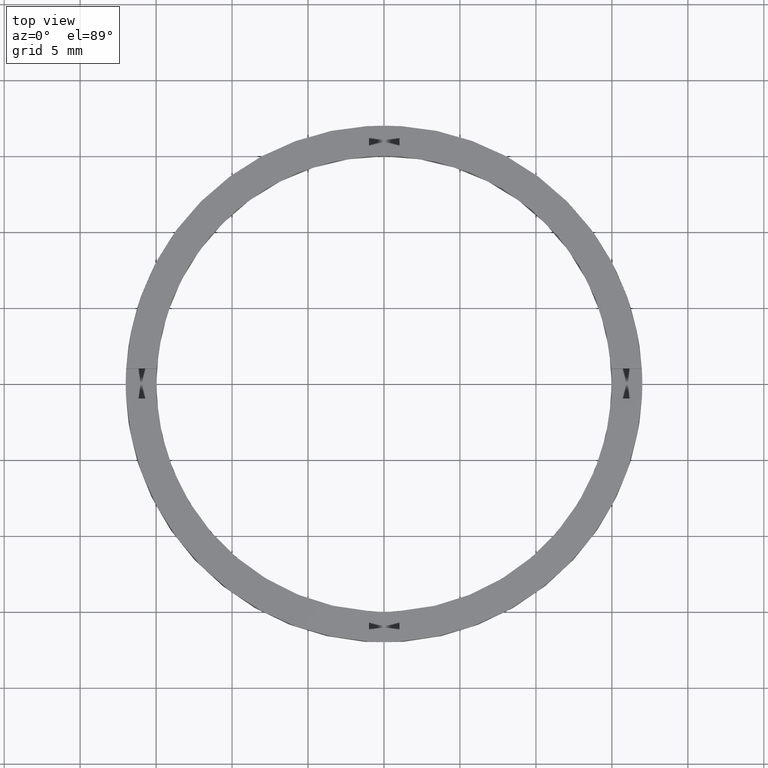
[diagram: clean part render]
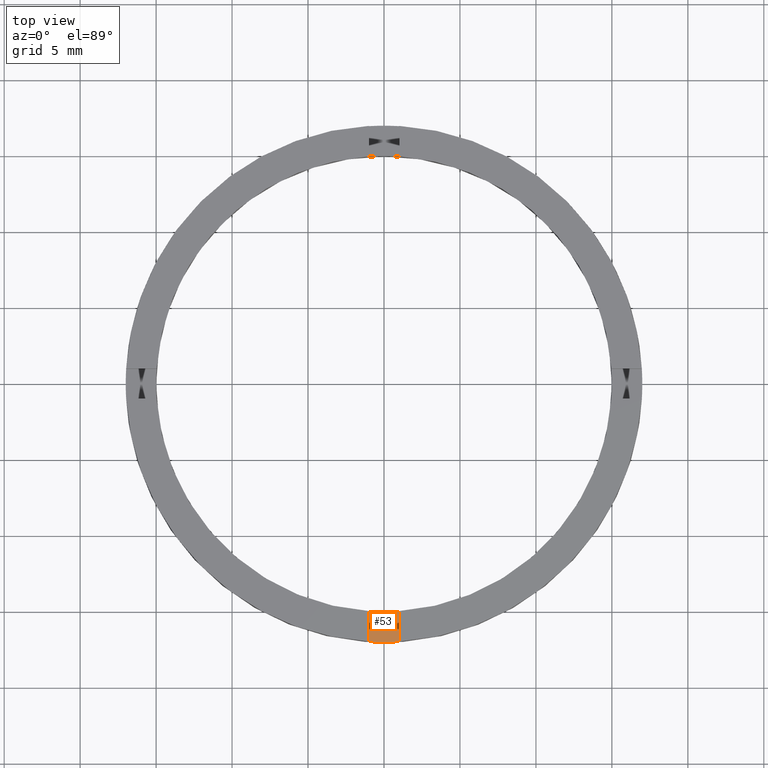
[diagram: same view with one face highlighted and labeled with its STEP entity id]
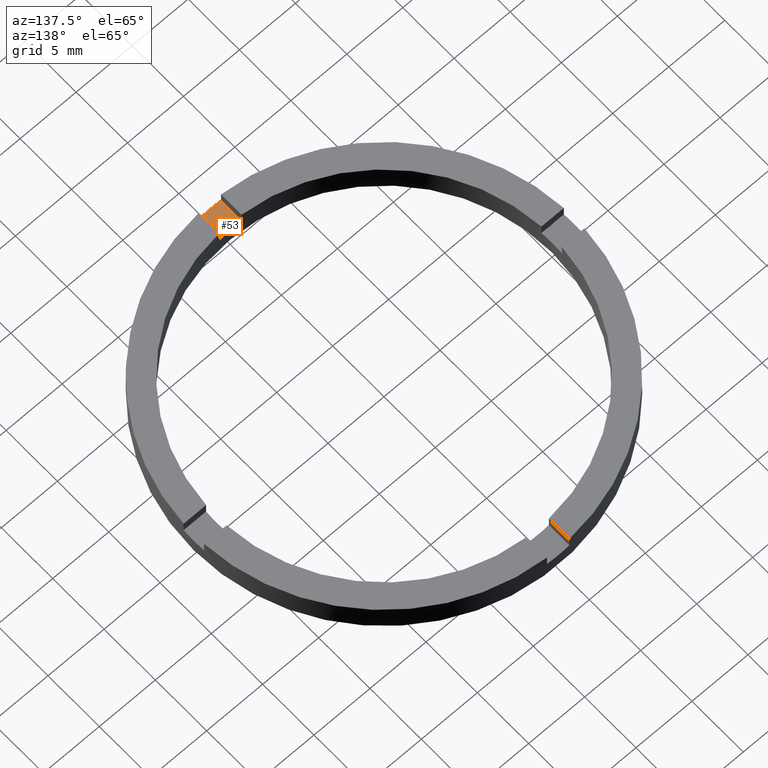
[diagram: same view with one face highlighted and labeled with its STEP entity id]
A machine part, top view. The second image highlights one B-rep face of the part: STEP entity #53.
A second angle (auxiliary view) of the same face is appended — the face is thin or edge-on in the first view.
In plain terms, the highlighted planar face has unit normal (-0, 0, 1).
Its self-contained STEP definition (entity closure, byte-faithful):
#15 = PLANE ( 'NONE',  #451 ) ;
#23 = DIRECTION ( 'NONE',  ( 1.301042606982605321E-16, -1.000000000000000000, 0.000000000000000000 ) ) ;
#53 = ADVANCED_FACE ( 'NONE', ( #59 ), #15, .T. ) ;
#59 = FACE_OUTER_BOUND ( 'NONE', #741, .T. ) ;
#67 = DIRECTION ( 'NONE',  ( 1.000000000000000000, 0.000000000000000000, 0.000000000000000000 ) ) ;
#102 = DIRECTION ( 'NONE',  ( -0.000000000000000000, 0.000000000000000000, 1.000000000000000000 ) ) ;
#126 = AXIS2_PLACEMENT_3D ( 'NONE', #191, #102, #250 ) ;
#132 = DIRECTION ( 'NONE',  ( -0.000000000000000000, 0.000000000000000000, 1.000000000000000000 ) ) ;
#133 = CARTESIAN_POINT ( 'NONE',  ( -1.000000000000163647, -7.000000000000181188, 1.500000000000000000 ) ) ;
#140 = LINE ( 'NONE', #200, #672 ) ;
#162 = VERTEX_POINT ( 'NONE', #585 ) ;
#191 = CARTESIAN_POINT ( 'NONE',  ( 0.000000000000000000, 0.000000000000000000, 1.500000000000000000 ) ) ;
#194 = EDGE_CURVE ( 'NONE', #725, #709, #270, .T. ) ;
#200 = CARTESIAN_POINT ( 'NONE',  ( 0.9999999999998363531, -7.000000000000181188, 1.500000000000000000 ) ) ;
#250 = DIRECTION ( 'NONE',  ( 1.000000000000000000, 0.000000000000000000, 0.000000000000000000 ) ) ;
#270 = CIRCLE ( 'NONE', #126, 17.00000000000000000 ) ;
#293 = CARTESIAN_POINT ( 'NONE',  ( -1.000000000000162537, -16.97056274847713198, 1.500000000000000000 ) ) ;
#335 = ORIENTED_EDGE ( 'NONE', *, *, #598, .F. ) ;
#364 = AXIS2_PLACEMENT_3D ( 'NONE', #722, #132, #67 ) ;
#376 = VERTEX_POINT ( 'NONE', #417 ) ;
#397 = VECTOR ( 'NONE', #23, 1000.000000000000000 ) ;
#413 = CIRCLE ( 'NONE', #364, 15.00000000000000000 ) ;
#414 = CARTESIAN_POINT ( 'NONE',  ( 0.9999999999998375744, -16.97056274847715329, 1.500000000000000000 ) ) ;
#417 = CARTESIAN_POINT ( 'NONE',  ( 0.9999999999998373523, -14.96662954709577775, 1.500000000000000000 ) ) ;
#422 = LINE ( 'NONE', #133, #397 ) ;
#451 = AXIS2_PLACEMENT_3D ( 'NONE', #560, #673, #601 ) ;
#486 = ORIENTED_EDGE ( 'NONE', *, *, #705, .T. ) ;
#495 = ORIENTED_EDGE ( 'NONE', *, *, #194, .T. ) ;
#498 = DIRECTION ( 'NONE',  ( -1.301042606982605321E-16, 1.000000000000000000, -0.000000000000000000 ) ) ;
#560 = CARTESIAN_POINT ( 'NONE',  ( 0.000000000000000000, 0.000000000000000000, 1.500000000000000000 ) ) ;
#582 = EDGE_CURVE ( 'NONE', #162, #725, #422, .T. ) ;
#585 = CARTESIAN_POINT ( 'NONE',  ( -1.000000000000162759, -14.96662954709575466, 1.500000000000000000 ) ) ;
#598 = EDGE_CURVE ( 'NONE', #162, #376, #413, .T. ) ;
#601 = DIRECTION ( 'NONE',  ( 1.000000000000000000, 0.000000000000000000, 0.000000000000000000 ) ) ;
#672 = VECTOR ( 'NONE', #498, 1000.000000000000000 ) ;
#673 = DIRECTION ( 'NONE',  ( -0.000000000000000000, 0.000000000000000000, 1.000000000000000000 ) ) ;
#705 = EDGE_CURVE ( 'NONE', #709, #376, #140, .T. ) ;
#709 = VERTEX_POINT ( 'NONE', #414 ) ;
#722 = CARTESIAN_POINT ( 'NONE',  ( 0.000000000000000000, 0.000000000000000000, 1.500000000000000000 ) ) ;
#725 = VERTEX_POINT ( 'NONE', #293 ) ;
#741 = EDGE_LOOP ( 'NONE', ( #495, #486, #335, #750 ) ) ;
#750 = ORIENTED_EDGE ( 'NONE', *, *, #582, .T. ) ;